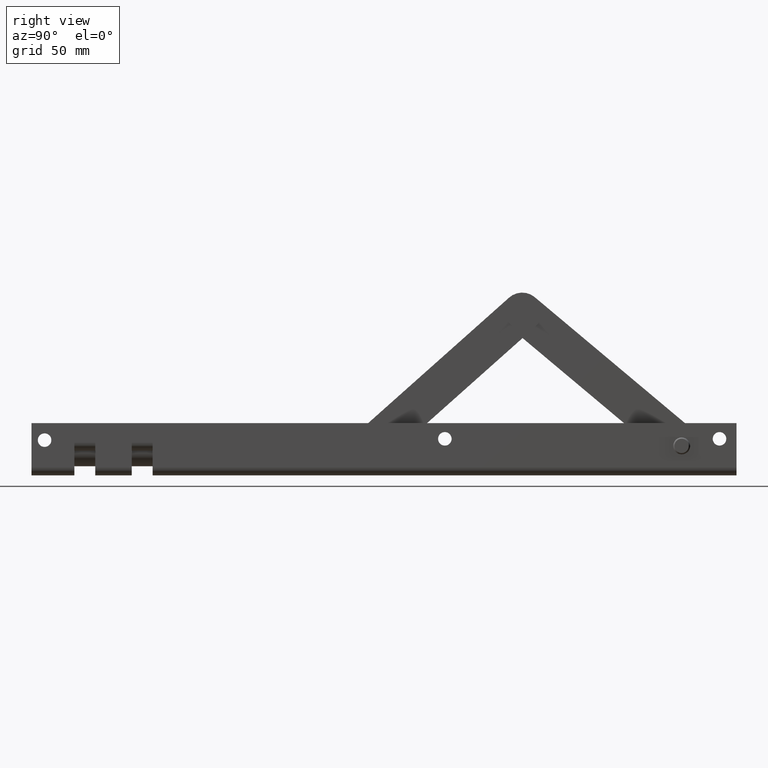
[diagram: clean part render]
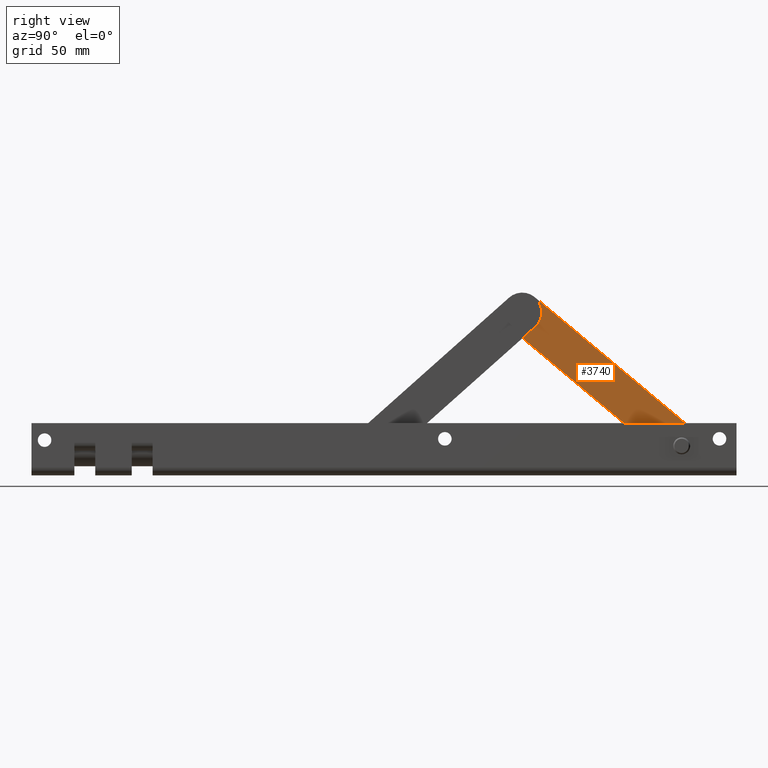
[diagram: same view with one face highlighted and labeled with its STEP entity id]
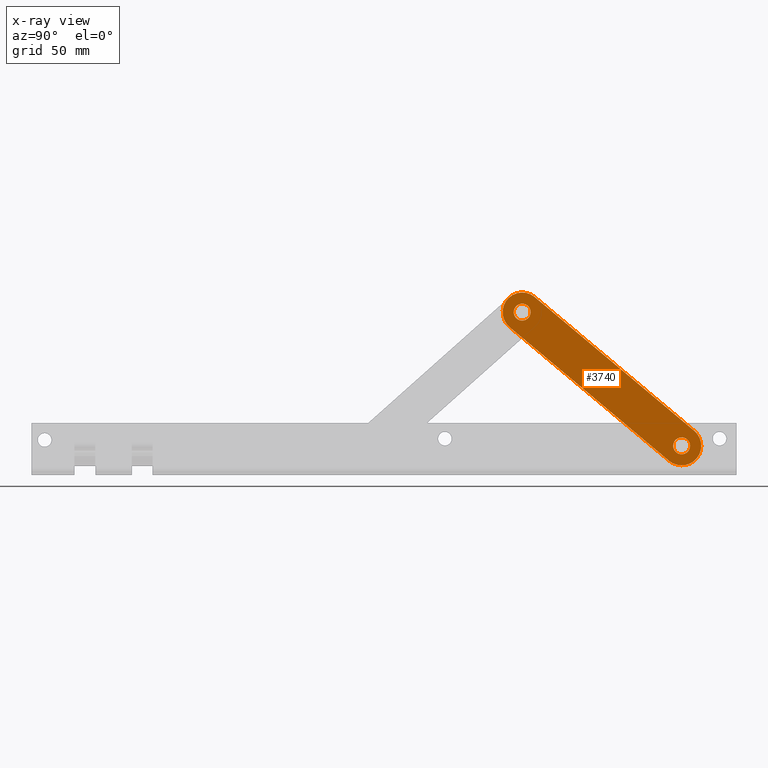
[diagram: x-ray of the same camera — body ghosted, the highlighted face saturated]
A machine part, right view. The second image highlights one B-rep face of the part: STEP entity #3740.
The next image is the same camera in x-ray: the body ghosted, the highlighted face saturated — about 0% of this face is hidden behind the body in this view.
In plain terms, the highlighted planar face has unit normal (-1, 0, 0).
Its self-contained STEP definition (entity closure, byte-faithful):
#475 = DIRECTION ( 'NONE',  ( 5.546678239835239257E-31, 1.000000000000000000, 1.232595164407830946E-32 ) ) ;
#728 = CIRCLE ( 'NONE', #1374, 3.250000000000072387 ) ;
#1248 = CARTESIAN_POINT ( 'NONE',  ( 8.348432581510804814E-14, -0.9999999999999995559, 36.60000000000031406 ) ) ;
#1374 = AXIS2_PLACEMENT_3D ( 'NONE', #15776, #475, #9075 ) ;
#1538 = EDGE_LOOP ( 'NONE', ( #7381, #11320 ) ) ;
#1630 = EDGE_LOOP ( 'NONE', ( #9729, #12969, #2603, #5328, #20788 ) ) ;
#1671 = CARTESIAN_POINT ( 'NONE',  ( 8.326672684688674053E-14, -0.9999999999999995559, 39.85000000000031406 ) ) ;
#1840 = FACE_BOUND ( 'NONE', #11322, .T. ) ;
#2014 = AXIS2_PLACEMENT_3D ( 'NONE', #14533, #21234, #10930 ) ;
#2369 = CARTESIAN_POINT ( 'NONE',  ( 3.053113317719180486E-13, -1.000000000000000000, -39.85000000000112408 ) ) ;
#2454 = AXIS2_PLACEMENT_3D ( 'NONE', #8974, #14307, #17773 ) ;
#2603 = ORIENTED_EDGE ( 'NONE', *, *, #11817, .F. ) ;
#3137 = LINE ( 'NONE', #9043, #22284 ) ;
#3266 = CARTESIAN_POINT ( 'NONE',  ( 7.500000000000242473, -1.000000000000000444, 39.85000000000032117 ) ) ;
#3427 = CARTESIAN_POINT ( 'NONE',  ( 8.344713808838832847E-14, -0.9999999999999995559, 43.10000000000038511 ) ) ;
#3478 = VERTEX_POINT ( 'NONE', #21919 ) ;
#3513 = DIRECTION ( 'NONE',  ( 5.551115123125875147E-17, 0.000000000000000000, 1.000000000000000000 ) ) ;
#3631 = DIRECTION ( 'NONE',  ( 5.546678239835239257E-31, 1.000000000000000000, 1.232595164407830946E-32 ) ) ;
#3740 = ADVANCED_FACE ( 'NONE', ( #1840, #4806, #20726 ), #17774, .F. ) ;
#3792 = EDGE_CURVE ( 'NONE', #15648, #16468, #15351, .T. ) ;
#4430 = CIRCLE ( 'NONE', #9146, 3.250000000000072387 ) ;
#4687 = VECTOR ( 'NONE', #5250, 1000.000000000000000 ) ;
#4806 = FACE_BOUND ( 'NONE', #1538, .T. ) ;
#5250 = DIRECTION ( 'NONE',  ( -5.551115123125669303E-17, 6.162975822039028832E-32, -1.000000000000000000 ) ) ;
#5328 = ORIENTED_EDGE ( 'NONE', *, *, #5918, .F. ) ;
#5918 = EDGE_CURVE ( 'NONE', #16468, #7507, #3137, .T. ) ;
#5945 = ORIENTED_EDGE ( 'NONE', *, *, #9389, .T. ) ;
#6028 = EDGE_CURVE ( 'NONE', #3478, #13976, #12323, .T. ) ;
#6469 = VERTEX_POINT ( 'NONE', #3266 ) ;
#6640 = DIRECTION ( 'NONE',  ( 5.546678239835239257E-31, 1.000000000000000000, 1.232595164407830946E-32 ) ) ;
#6757 = DIRECTION ( 'NONE',  ( 5.546678239835239257E-31, 1.000000000000000000, 1.232595164407830946E-32 ) ) ;
#7341 = EDGE_CURVE ( 'NONE', #20836, #15648, #9316, .T. ) ;
#7381 = ORIENTED_EDGE ( 'NONE', *, *, #6028, .T. ) ;
#7438 = AXIS2_PLACEMENT_3D ( 'NONE', #11885, #3631, #17504 ) ;
#7461 = DIRECTION ( 'NONE',  ( 5.551115123125669303E-17, -6.162975822039028832E-32, 1.000000000000000000 ) ) ;
#7507 = VERTEX_POINT ( 'NONE', #9782 ) ;
#7678 = EDGE_CURVE ( 'NONE', #13976, #3478, #4430, .T. ) ;
#7919 = VERTEX_POINT ( 'NONE', #3427 ) ;
#8424 = DIRECTION ( 'NONE',  ( 5.551115123125711212E-17, 0.000000000000000000, 1.000000000000000000 ) ) ;
#8739 = CARTESIAN_POINT ( 'NONE',  ( 4.436728762158244969E-13, -1.000000000000000000, -47.35000000000113118 ) ) ;
#8974 = CARTESIAN_POINT ( 'NONE',  ( 3.053113317719180486E-13, -1.000000000000000000, -39.85000000000112408 ) ) ;
#9043 = CARTESIAN_POINT ( 'NONE',  ( -7.499999999999847233, -1.000000000000000444, -39.85000000000137987 ) ) ;
#9044 = CARTESIAN_POINT ( 'NONE',  ( 3.053113317719180486E-13, -1.000000000000000000, -39.85000000000112408 ) ) ;
#9075 = DIRECTION ( 'NONE',  ( 5.551115123125616302E-17, 0.000000000000000000, 1.000000000000000000 ) ) ;
#9094 = CARTESIAN_POINT ( 'NONE',  ( -7.499999999999847233, -1.000000000000000444, -39.85000000000137987 ) ) ;
#9146 = AXIS2_PLACEMENT_3D ( 'NONE', #11594, #6640, #18675 ) ;
#9267 = DIRECTION ( 'NONE',  ( 5.546678239835238381E-31, 1.000000000000000000, 6.162975822039025548E-32 ) ) ;
#9316 = CIRCLE ( 'NONE', #2014, 7.500000000000158984 ) ;
#9389 = EDGE_CURVE ( 'NONE', #22135, #7919, #13310, .T. ) ;
#9729 = ORIENTED_EDGE ( 'NONE', *, *, #7341, .F. ) ;
#9782 = CARTESIAN_POINT ( 'NONE',  ( -7.499999999999936939, -0.9999999999999995559, 39.85000000000029985 ) ) ;
#10615 = CARTESIAN_POINT ( 'NONE',  ( 7.500000000000422773, -1.000000000000019540, -39.85000000000113829 ) ) ;
#10897 = AXIS2_PLACEMENT_3D ( 'NONE', #1671, #6757, #8424 ) ;
#10930 = DIRECTION ( 'NONE',  ( 5.551115123125875147E-17, 0.000000000000000000, 1.000000000000000000 ) ) ;
#11320 = ORIENTED_EDGE ( 'NONE', *, *, #7678, .T. ) ;
#11322 = EDGE_LOOP ( 'NONE', ( #19974, #5945 ) ) ;
#11594 = CARTESIAN_POINT ( 'NONE',  ( 3.053113317719180486E-13, -1.000000000000000000, -39.85000000000112408 ) ) ;
#11817 = EDGE_CURVE ( 'NONE', #7507, #6469, #18421, .T. ) ;
#11885 = CARTESIAN_POINT ( 'NONE',  ( 8.326672684688674053E-14, -0.9999999999999995559, 39.85000000000031406 ) ) ;
#12323 = CIRCLE ( 'NONE', #2454, 3.250000000000072387 ) ;
#12969 = ORIENTED_EDGE ( 'NONE', *, *, #18043, .F. ) ;
#13310 = CIRCLE ( 'NONE', #7438, 3.250000000000072387 ) ;
#13976 = VERTEX_POINT ( 'NONE', #16482 ) ;
#14088 = DIRECTION ( 'NONE',  ( 5.551115123125669303E-17, -6.162975822039028832E-32, 1.000000000000000000 ) ) ;
#14125 = EDGE_CURVE ( 'NONE', #7919, #22135, #728, .T. ) ;
#14253 = CARTESIAN_POINT ( 'NONE',  ( 7.500000000000422773, -1.000000000000019540, -39.85000000000113829 ) ) ;
#14307 = DIRECTION ( 'NONE',  ( 5.546678239835239257E-31, 1.000000000000000000, 1.232595164407830946E-32 ) ) ;
#14309 = DIRECTION ( 'NONE',  ( 5.546678239835239257E-31, 1.000000000000000000, 1.232595164407830946E-32 ) ) ;
#14533 = CARTESIAN_POINT ( 'NONE',  ( 3.053113317719180486E-13, -1.000000000000000000, -39.85000000000112408 ) ) ;
#15351 = CIRCLE ( 'NONE', #21436, 7.500000000000158984 ) ;
#15648 = VERTEX_POINT ( 'NONE', #8739 ) ;
#15776 = CARTESIAN_POINT ( 'NONE',  ( 8.326672684688674053E-14, -0.9999999999999995559, 39.85000000000031406 ) ) ;
#16468 = VERTEX_POINT ( 'NONE', #9094 ) ;
#16482 = CARTESIAN_POINT ( 'NONE',  ( 3.055289307401393815E-13, -1.000000000000000000, -43.10000000000113118 ) ) ;
#17504 = DIRECTION ( 'NONE',  ( 5.551115123125616302E-17, 0.000000000000000000, 1.000000000000000000 ) ) ;
#17773 = DIRECTION ( 'NONE',  ( 5.551115123126375580E-17, 0.000000000000000000, 1.000000000000000000 ) ) ;
#17774 = PLANE ( 'NONE',  #20300 ) ;
#18043 = EDGE_CURVE ( 'NONE', #6469, #20836, #18457, .T. ) ;
#18421 = CIRCLE ( 'NONE', #10897, 7.500000000000158984 ) ;
#18457 = LINE ( 'NONE', #10615, #4687 ) ;
#18675 = DIRECTION ( 'NONE',  ( 5.551115123126375580E-17, 0.000000000000000000, 1.000000000000000000 ) ) ;
#19974 = ORIENTED_EDGE ( 'NONE', *, *, #14125, .T. ) ;
#20300 = AXIS2_PLACEMENT_3D ( 'NONE', #9044, #9267, #7461 ) ;
#20726 = FACE_OUTER_BOUND ( 'NONE', #1630, .T. ) ;
#20788 = ORIENTED_EDGE ( 'NONE', *, *, #3792, .F. ) ;
#20836 = VERTEX_POINT ( 'NONE', #14253 ) ;
#21234 = DIRECTION ( 'NONE',  ( 5.546678239835239257E-31, 1.000000000000000000, 1.232595164407830946E-32 ) ) ;
#21436 = AXIS2_PLACEMENT_3D ( 'NONE', #2369, #14309, #3513 ) ;
#21919 = CARTESIAN_POINT ( 'NONE',  ( 3.054917430134196366E-13, -1.000000000000000000, -36.60000000000105302 ) ) ;
#22135 = VERTEX_POINT ( 'NONE', #1248 ) ;
#22284 = VECTOR ( 'NONE', #14088, 1000.000000000000000 ) ;